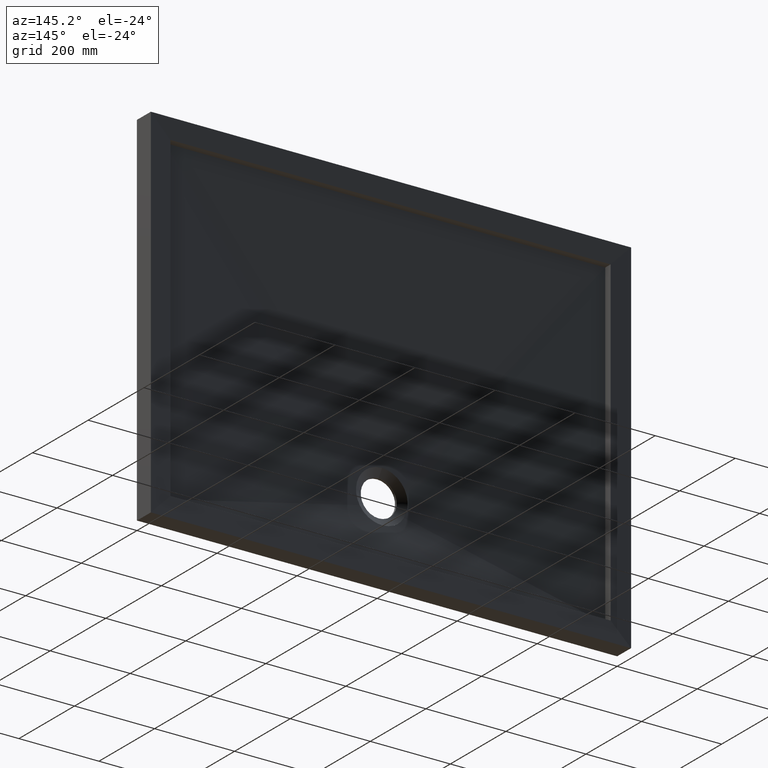
[diagram: clean part render]
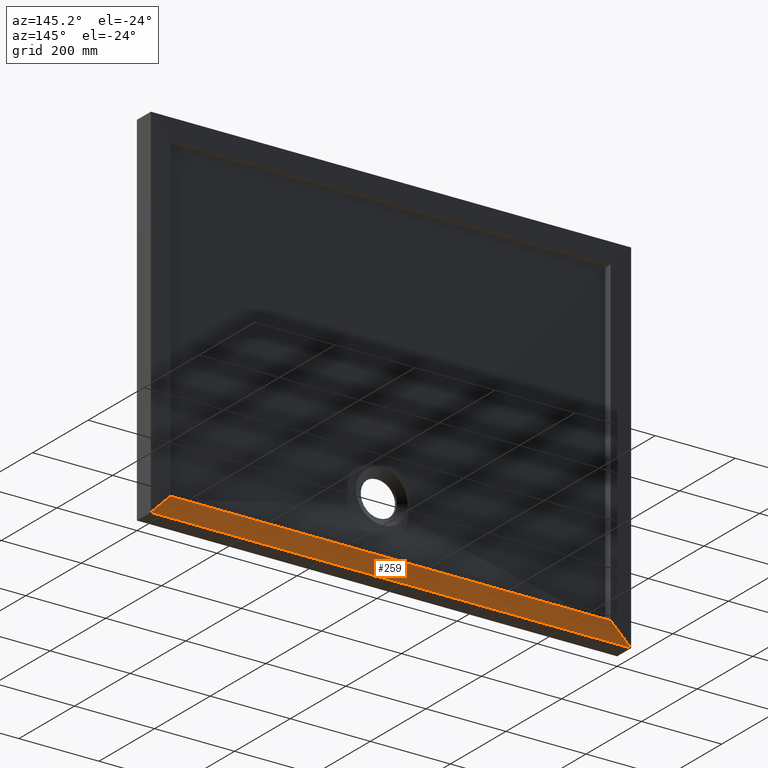
[diagram: same view with one face highlighted and labeled with its STEP entity id]
A machine part, auxiliary view. The second image highlights one B-rep face of the part: STEP entity #259.
In plain terms, the highlighted planar face has unit normal (-0, 0.9994, 0.0349).
Its self-contained STEP definition (entity closure, byte-faithful):
#60 = CARTESIAN_POINT ( 'NONE',  ( -549.9999999999997700, 48.25745360236166400, -400.0000000000000600 ) ) ;
#61 = AXIS2_PLACEMENT_3D ( 'NONE', #1025, #716, #1022 ) ;
#65 = VERTEX_POINT ( 'NONE', #918 ) ;
#109 = CARTESIAN_POINT ( 'NONE',  ( 150.2437434106919600, 34.29765751312299900, -0.2437434106918323600 ) ) ;
#192 = PLANE ( 'NONE',  #61 ) ;
#217 = LINE ( 'NONE', #109, #486 ) ;
#223 = ORIENTED_EDGE ( 'NONE', *, *, #624, .F. ) ;
#258 = CARTESIAN_POINT ( 'NONE',  ( -599.9000000000052100, 50.00000000000000000, -449.9000000000054900 ) ) ;
#259 = ADVANCED_FACE ( 'NONE', ( #378 ), #192, .T. ) ;
#281 = VERTEX_POINT ( 'NONE', #258 ) ;
#314 = DIRECTION ( 'NONE',  ( -1.000000000000000000, 0.0000000000000000000, 0.0000000000000000000 ) ) ;
#322 = DIRECTION ( 'NONE',  ( -0.7068913075831633200, 0.02468518840783089100, -0.7068913075831641000 ) ) ;
#378 = FACE_OUTER_BOUND ( 'NONE', #982, .T. ) ;
#415 = CARTESIAN_POINT ( 'NONE',  ( -549.9999999999997700, 48.25745360236166400, -400.0000000000000600 ) ) ;
#486 = VECTOR ( 'NONE', #593, 1000.000000000000100 ) ;
#491 = ORIENTED_EDGE ( 'NONE', *, *, #865, .F. ) ;
#507 = LINE ( 'NONE', #556, #721 ) ;
#509 = CARTESIAN_POINT ( 'NONE',  ( 599.9000000000054300, 50.00000000000000000, -449.9000000000054900 ) ) ;
#556 = CARTESIAN_POINT ( 'NONE',  ( -0.3351471897019564500, 29.06273397965850700, 149.6648528102982400 ) ) ;
#577 = LINE ( 'NONE', #953, #966 ) ;
#579 = DIRECTION ( 'NONE',  ( 1.000000000000000000, 0.0000000000000000000, 0.0000000000000000000 ) ) ;
#593 = DIRECTION ( 'NONE',  ( -0.7068913075831635400, -0.02468518840783088400, 0.7068913075831637600 ) ) ;
#624 = EDGE_CURVE ( 'NONE', #685, #65, #217, .T. ) ;
#628 = LINE ( 'NONE', #415, #655 ) ;
#655 = VECTOR ( 'NONE', #314, 1000.000000000000000 ) ;
#665 = ORIENTED_EDGE ( 'NONE', *, *, #674, .F. ) ;
#674 = EDGE_CURVE ( 'NONE', #950, #281, #507, .T. ) ;
#685 = VERTEX_POINT ( 'NONE', #509 ) ;
#716 = DIRECTION ( 'NONE',  ( -0.0000000000000000000, 0.9993908270190957600, 0.03489949670249966500 ) ) ;
#721 = VECTOR ( 'NONE', #322, 1000.000000000000000 ) ;
#865 = EDGE_CURVE ( 'NONE', #281, #685, #577, .T. ) ;
#918 = CARTESIAN_POINT ( 'NONE',  ( 550.0000000000000000, 48.25745360236166400, -400.0000000000000600 ) ) ;
#945 = ORIENTED_EDGE ( 'NONE', *, *, #1020, .F. ) ;
#950 = VERTEX_POINT ( 'NONE', #60 ) ;
#953 = CARTESIAN_POINT ( 'NONE',  ( 550.0000000000002300, 50.00000000000000000, -449.9000000000054900 ) ) ;
#966 = VECTOR ( 'NONE', #579, 1000.000000000000000 ) ;
#982 = EDGE_LOOP ( 'NONE', ( #223, #491, #665, #945 ) ) ;
#1020 = EDGE_CURVE ( 'NONE', #65, #950, #628, .T. ) ;
#1022 = DIRECTION ( 'NONE',  ( 1.000000000000000000, 0.0000000000000000000, 0.0000000000000000000 ) ) ;
#1025 = CARTESIAN_POINT ( 'NONE',  ( 550.0000000000000000, 48.25745360236166400, -400.0000000000000600 ) ) ;